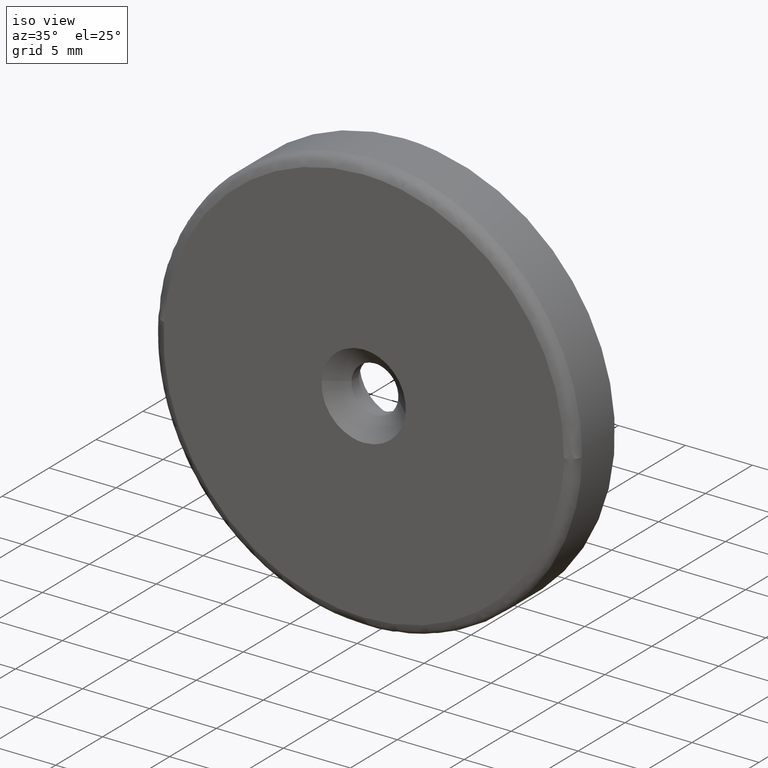
[diagram: clean part render]
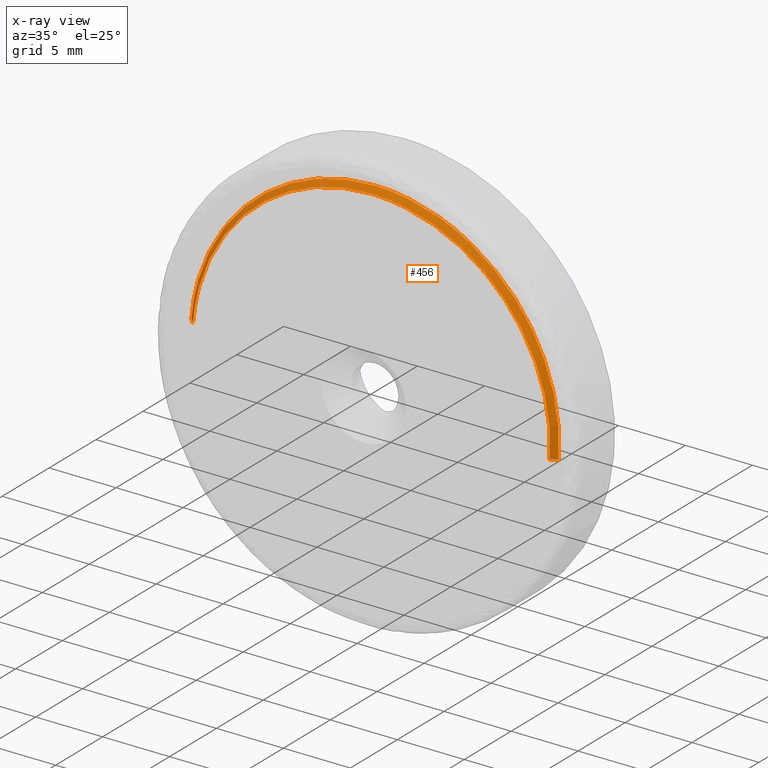
[diagram: x-ray — body ghosted, one internal face saturated and labeled with its STEP entity id]
A machine part, iso view, then the same camera in x-ray: the body is ghosted and one INTERNAL B-rep face — a face not visible from any outside direction — is saturated and labeled: STEP entity #456.
In plain terms, the highlighted face is a freeform B-spline surface patch.
Its self-contained STEP definition (entity closure, byte-faithful):
#265=CARTESIAN_POINT('',(13.707613338832470,-3.100002999995067,-1.078812566295847));
#266=VERTEX_POINT('',#265);
#280=CARTESIAN_POINT('',(13.308846405338080,-3.500002999997927,-1.047428927982708));
#281=VERTEX_POINT('',#280);
#282=CARTESIAN_POINT('',(13.308846405338080,-3.500002999997927,-1.047428927982708));
#283=CARTESIAN_POINT('',(13.707613338832470,-3.100002999995067,-1.078812566295847));
#284=QUASI_UNIFORM_CURVE('',1,(#282,#283),.UNSPECIFIED.,.F.,.U.);
#285=EDGE_CURVE('',#281,#266,#284,.T.);
#302=CARTESIAN_POINT('',(-13.308846405338080,-3.500002999997928,1.047428927982711));
#303=VERTEX_POINT('',#302);
#319=CARTESIAN_POINT('',(-13.707613338832349,-3.100002999995378,1.078812566293355));
#320=VERTEX_POINT('',#319);
#321=CARTESIAN_POINT('',(-13.308846405338080,-3.500002999997928,1.047428927982711));
#322=CARTESIAN_POINT('',(-13.707613338832349,-3.100002999995378,1.078812566293355));
#323=QUASI_UNIFORM_CURVE('',1,(#321,#322),.UNSPECIFIED.,.F.,.U.);
#324=EDGE_CURVE('',#303,#320,#323,.T.);
#359=CARTESIAN_POINT('',(-13.298877231999921,-3.510003000000001,1.046644337009459));
#360=CARTESIAN_POINT('',(-12.252232894990463,-3.510003000000001,14.345521569009387));
#361=CARTESIAN_POINT('',(1.046644337009459,-3.510003000000001,13.298877231999921));
#362=CARTESIAN_POINT('',(14.345521569009387,-3.510003000000001,12.252232894990463));
#363=CARTESIAN_POINT('',(13.298877231999921,-3.510003000000001,-1.046644337009460));
#364=CARTESIAN_POINT('',(-13.717831741501270,-3.089753000000000,1.079616771989086));
#365=CARTESIAN_POINT('',(-12.638214969512180,-3.089752999999999,14.797448513490357));
#366=CARTESIAN_POINT('',(1.079616771989087,-3.089753000000000,13.717831741501270));
#367=CARTESIAN_POINT('',(14.797448513490357,-3.089752999999999,12.638214969512180));
#368=CARTESIAN_POINT('',(13.717831741501270,-3.089753000000000,-1.079616771989087));
#376=(BOUNDED_SURFACE()B_SPLINE_SURFACE(2,1,((#359,#364),(#360,#365),(#361,#366),(#362,#367),(#363,#368)),.UNSPECIFIED.,.F.,.F.,.U.)B_SPLINE_SURFACE_WITH_KNOTS((3,2,3),(2,2),(0.0,22.798728686577519,45.597457373155038),(0.0,1.0),.UNSPECIFIED.)GEOMETRIC_REPRESENTATION_ITEM()RATIONAL_B_SPLINE_SURFACE(((1.0,1.0),(0.707106781186548,0.707106781186548),(1.0,1.0),(0.707106781186548,0.707106781186548),(1.0,1.0)))REPRESENTATION_ITEM('')SURFACE());
#377=CARTESIAN_POINT('',(4.834744914539560,-3.100003000000001,12.871975047028650));
#378=VERTEX_POINT('',#377);
#379=CARTESIAN_POINT('',(13.707613338832466,-3.100002999995068,-1.078812566295848));
#380=CARTESIAN_POINT('',(13.750000000000002,-3.100003000000001,-0.540238971393221));
#381=CARTESIAN_POINT('',(13.750000000000000,-3.100003000000000,-5.695187E-016));
#382=CARTESIAN_POINT('',(13.750000000000000,-3.100003000000001,9.523383705857595));
#383=CARTESIAN_POINT('',(4.834744914539560,-3.100003000000001,12.871975047028648));
#391=(BOUNDED_CURVE()B_SPLINE_CURVE(2,(#379,#380,#381,#382,#383),.UNSPECIFIED.,.F.,.U.)B_SPLINE_CURVE_WITH_KNOTS((3,2,3),(0.236331300631827,0.250000000000000,0.440284198303915),.UNSPECIFIED.)CURVE()GEOMETRIC_REPRESENTATION_ITEM()RATIONAL_B_SPLINE_CURVE((0.969723356169854,0.983986122580249,1.0,0.777068194677716,0.893499588172995))REPRESENTATION_ITEM(''));
#392=EDGE_CURVE('',#266,#378,#391,.T.);
#393=ORIENTED_EDGE('',*,*,#392,.T.);
#394=CARTESIAN_POINT('',(0.0,-3.100003000000000,13.750000000000000));
#395=VERTEX_POINT('',#394);
#396=CARTESIAN_POINT('',(4.834744914539560,-3.100003000000001,12.871975047028648));
#397=CARTESIAN_POINT('',(2.497100326233656,-3.100003000000000,13.750000000000004));
#398=CARTESIAN_POINT('',(0.0,-3.100003000000000,13.750000000000000));
#406=(BOUNDED_CURVE()B_SPLINE_CURVE(2,(#396,#397,#398),.UNSPECIFIED.,.F.,.U.)B_SPLINE_CURVE_WITH_KNOTS((3,3),(0.440284198303915,0.500000000000000),.UNSPECIFIED.)CURVE()GEOMETRIC_REPRESENTATION_ITEM()RATIONAL_B_SPLINE_CURVE((0.893499588172995,0.930038586508832,1.0))REPRESENTATION_ITEM(''));
#407=EDGE_CURVE('',#378,#395,#406,.T.);
#408=ORIENTED_EDGE('',*,*,#407,.T.);
#409=CARTESIAN_POINT('',(0.0,-3.100003000000000,13.750000000000000));
#410=CARTESIAN_POINT('',(-12.710369260235053,-3.100003000000000,13.749999999999998));
#411=CARTESIAN_POINT('',(-13.707613338832351,-3.100002999995378,1.078812566293355));
#419=(BOUNDED_CURVE()B_SPLINE_CURVE(2,(#409,#410,#411),.UNSPECIFIED.,.F.,.U.)B_SPLINE_CURVE_WITH_KNOTS((3,3),(0.500000000000000,0.736331300631889),.UNSPECIFIED.)CURVE()GEOMETRIC_REPRESENTATION_ITEM()RATIONAL_B_SPLINE_CURVE((1.0,0.723120658606225,0.969723356169983))REPRESENTATION_ITEM(''));
#420=EDGE_CURVE('',#395,#320,#419,.T.);
#421=ORIENTED_EDGE('',*,*,#420,.T.);
#422=ORIENTED_EDGE('',*,*,#324,.F.);
#423=CARTESIAN_POINT('',(0.0,-3.500003000000000,13.350000000000000));
#424=VERTEX_POINT('',#423);
#425=CARTESIAN_POINT('',(0.0,-3.500003000000000,13.350000000000000));
#426=CARTESIAN_POINT('',(-12.340613063607664,-3.500003000000000,13.350000000000000));
#427=CARTESIAN_POINT('',(-13.308846405338084,-3.500002999997927,1.047428927982712));
#435=(BOUNDED_CURVE()B_SPLINE_CURVE(2,(#425,#426,#427),.UNSPECIFIED.,.F.,.U.)B_SPLINE_CURVE_WITH_KNOTS((3,3),(0.500000000000000,0.736331300632360),.UNSPECIFIED.)CURVE()GEOMETRIC_REPRESENTATION_ITEM()RATIONAL_B_SPLINE_CURVE((1.0,0.723120658605674,0.969723356170966))REPRESENTATION_ITEM(''));
#436=EDGE_CURVE('',#424,#303,#435,.T.);
#437=ORIENTED_EDGE('',*,*,#436,.F.);
#438=CARTESIAN_POINT('',(13.308846405338077,-3.500002999997927,-1.047428927982708));
#439=CARTESIAN_POINT('',(13.350000000000009,-3.500003000000000,-0.524522928568274));
#440=CARTESIAN_POINT('',(13.350000000000000,-3.500003000000000,-5.695187E-016));
#441=CARTESIAN_POINT('',(13.350000000000000,-3.500003000000000,13.350000000000000));
#442=CARTESIAN_POINT('',(0.0,-3.500003000000000,13.350000000000000));
#450=(BOUNDED_CURVE()B_SPLINE_CURVE(2,(#438,#439,#440,#441,#442),.UNSPECIFIED.,.F.,.U.)B_SPLINE_CURVE_WITH_KNOTS((3,2,3),(0.236331300632360,0.250000000000000,0.500000000000000),.UNSPECIFIED.)CURVE()GEOMETRIC_REPRESENTATION_ITEM()RATIONAL_B_SPLINE_CURVE((0.969723356170966,0.983986122580874,1.0,0.707106781186548,1.0))REPRESENTATION_ITEM(''));
#451=EDGE_CURVE('',#281,#424,#450,.T.);
#452=ORIENTED_EDGE('',*,*,#451,.F.);
#453=ORIENTED_EDGE('',*,*,#285,.T.);
#454=EDGE_LOOP('',(#393,#408,#421,#422,#437,#452,#453));
#455=FACE_OUTER_BOUND('',#454,.T.);
#456=ADVANCED_FACE('',(#455),#376,.T.);